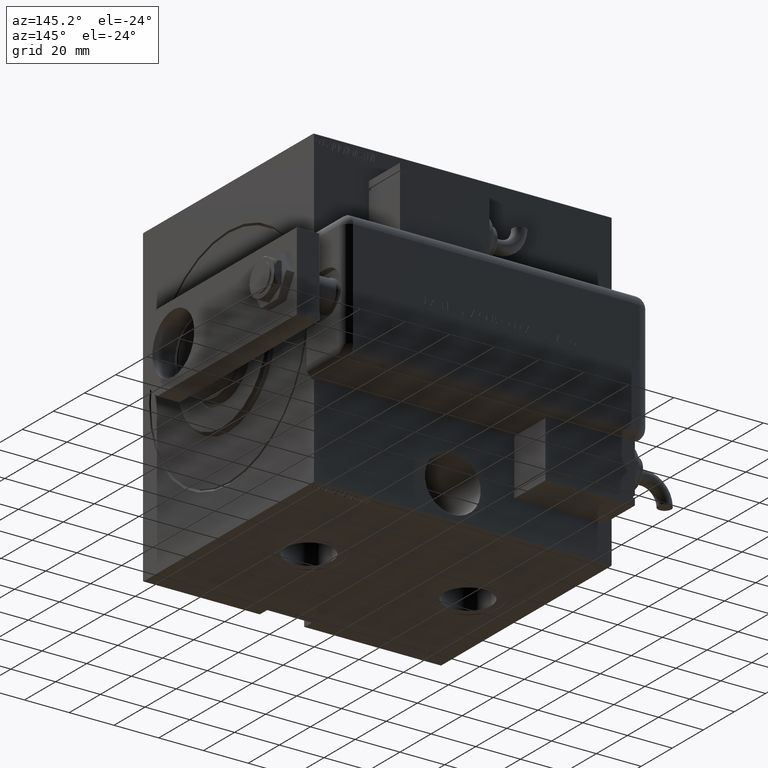
[diagram: clean part render]
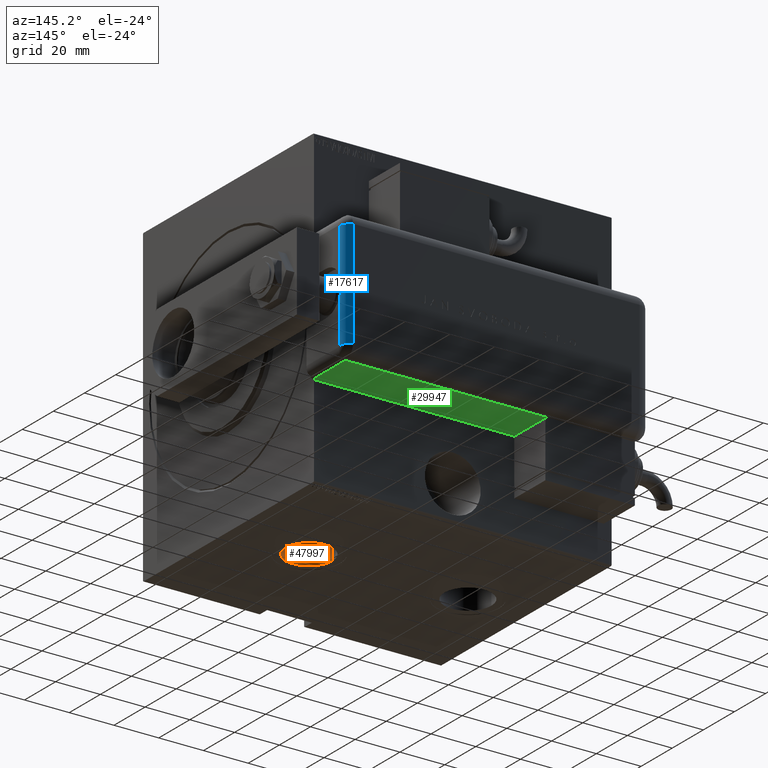
[diagram: same view with three faces highlighted in distinct colors, each labeled with its STEP entity id]
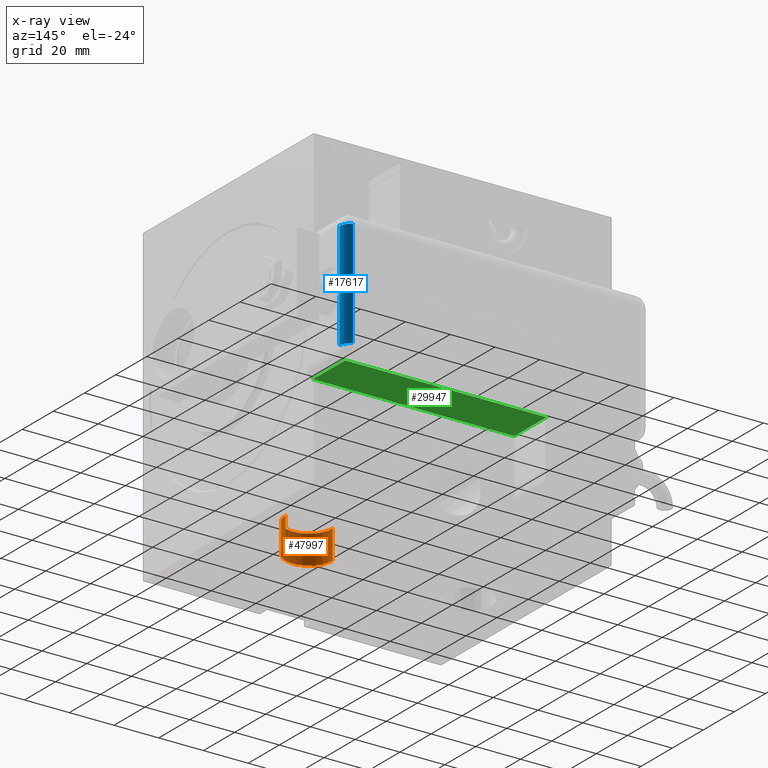
[diagram: x-ray of the same camera — body ghosted, the three highlighted faces saturated]
A machine part, auxiliary view with three faces highlighted in distinct colors.
The next image is the same camera in x-ray (body ghosted, the three faces saturated) — at least one of them is partly hidden behind the body in this view.
Their STEP definitions:

[orange] entity #47997 — the highlighted cylindrical surface (edge-blend (fillet) strip) has radius 10.48 mm, axis along (-0, 0, -1).
#3335 = LINE ( 'NONE', #8072, #40137 ) ;
#5114 = DIRECTION ( 'NONE',  ( -0.000000000000000000, -0.000000000000000000, -1.000000000000000000 ) ) ;
#7113 = VECTOR ( 'NONE', #53926, 1000.000000000000000 ) ;
#8072 = CARTESIAN_POINT ( 'NONE',  ( 25.51999999999999602, -9.665880115316144659E-15, -57.00000000000001421 ) ) ;
#8816 = DIRECTION ( 'NONE',  ( -1.000000000000000000, 0.000000000000000000, 0.000000000000000000 ) ) ;
#9597 = AXIS2_PLACEMENT_3D ( 'NONE', #17258, #35340, #53411 ) ;
#11485 = EDGE_CURVE ( 'NONE', #35185, #12454, #19244, .T. ) ;
#12454 = VERTEX_POINT ( 'NONE', #44870 ) ;
#12600 = EDGE_CURVE ( 'NONE', #48841, #33651, #3335, .T. ) ;
#13961 = ORIENTED_EDGE ( 'NONE', *, *, #11485, .F. ) ;
#13979 = AXIS2_PLACEMENT_3D ( 'NONE', #23318, #49395, #8816 ) ;
#17258 = CARTESIAN_POINT ( 'NONE',  ( 36.00000000000000000, -9.665880115316144659E-15, -57.00000000000001421 ) ) ;
#17347 = CARTESIAN_POINT ( 'NONE',  ( 46.47999999999999687, -8.382450269809717592E-15, -57.00000000000001421 ) ) ;
#19244 = LINE ( 'NONE', #27220, #7113 ) ;
#23318 = CARTESIAN_POINT ( 'NONE',  ( 36.00000000000000000, -9.665880115316144659E-15, -69.90000000000001990 ) ) ;
#24145 = CARTESIAN_POINT ( 'NONE',  ( 25.51999999999999602, -9.665880115316144659E-15, -69.90000000000001990 ) ) ;
#24724 = CIRCLE ( 'NONE', #9597, 10.48000000000000043 ) ;
#27220 = CARTESIAN_POINT ( 'NONE',  ( 46.47999999999999687, -8.382450269809717592E-15, -57.00000000000001421 ) ) ;
#30295 = EDGE_LOOP ( 'NONE', ( #13961, #57404, #58596, #56832 ) ) ;
#30371 = EDGE_CURVE ( 'NONE', #33651, #12454, #49925, .T. ) ;
#32373 = CARTESIAN_POINT ( 'NONE',  ( 25.51999999999999602, -9.665880115316144659E-15, -57.00000000000001421 ) ) ;
#33651 = VERTEX_POINT ( 'NONE', #24145 ) ;
#35185 = VERTEX_POINT ( 'NONE', #17347 ) ;
#35340 = DIRECTION ( 'NONE',  ( 0.000000000000000000, 0.000000000000000000, -1.000000000000000000 ) ) ;
#40137 = VECTOR ( 'NONE', #58145, 1000.000000000000000 ) ;
#43559 = AXIS2_PLACEMENT_3D ( 'NONE', #45706, #5114, #50736 ) ;
#44870 = CARTESIAN_POINT ( 'NONE',  ( 46.47999999999999687, -8.382450269809717592E-15, -69.90000000000001990 ) ) ;
#45706 = CARTESIAN_POINT ( 'NONE',  ( 36.00000000000000000, -9.665880115316144659E-15, -57.00000000000001421 ) ) ;
#47997 = ADVANCED_FACE ( 'NONE', ( #50137 ), #50433, .F. ) ;
#48841 = VERTEX_POINT ( 'NONE', #32373 ) ;
#49395 = DIRECTION ( 'NONE',  ( 0.000000000000000000, 0.000000000000000000, -1.000000000000000000 ) ) ;
#49925 = CIRCLE ( 'NONE', #13979, 10.48000000000000043 ) ;
#50137 = FACE_OUTER_BOUND ( 'NONE', #30295, .T. ) ;
#50433 = CYLINDRICAL_SURFACE ( 'NONE', #43559, 10.48000000000000043 ) ;
#50736 = DIRECTION ( 'NONE',  ( -1.000000000000000000, 0.000000000000000000, 0.000000000000000000 ) ) ;
#53411 = DIRECTION ( 'NONE',  ( -1.000000000000000000, 0.000000000000000000, 0.000000000000000000 ) ) ;
#53801 = EDGE_CURVE ( 'NONE', #48841, #35185, #24724, .T. ) ;
#53926 = DIRECTION ( 'NONE',  ( -0.000000000000000000, -0.000000000000000000, -1.000000000000000000 ) ) ;
#56832 = ORIENTED_EDGE ( 'NONE', *, *, #30371, .T. ) ;
#57404 = ORIENTED_EDGE ( 'NONE', *, *, #53801, .F. ) ;
#58145 = DIRECTION ( 'NONE',  ( -0.000000000000000000, -0.000000000000000000, -1.000000000000000000 ) ) ;
#58596 = ORIENTED_EDGE ( 'NONE', *, *, #12600, .T. ) ;

[blue] entity #17617 — the highlighted cylindrical surface (edge-blend (fillet) strip) has radius 5 mm, axis along (-0, -0, 1).
#221 = CARTESIAN_POINT ( 'NONE',  ( 23.99999999999999289, 21.21742430504414401, 131.0000000000000000 ) ) ;
#426 = VERTEX_POINT ( 'NONE', #39996 ) ;
#806 = DIRECTION ( 'NONE',  ( 1.000000000000000000, 0.000000000000000000, -0.000000000000000000 ) ) ;
#1209 = CARTESIAN_POINT ( 'NONE',  ( 3.358724364638089543, 21.95764543947606384, 135.9498052832645953 ) ) ;
#1501 = CARTESIAN_POINT ( 'NONE',  ( 2.120548922004968251, 22.28188573776164105, 135.8866191559994263 ) ) ;
#1787 = CARTESIAN_POINT ( 'NONE',  ( -1.704474330344697863, 22.36301991028238589, 135.8673205824228205 ) ) ;
#2083 = CARTESIAN_POINT ( 'NONE',  ( -2.126976179448857973, 22.28041711506194744, 135.8869335919388561 ) ) ;
#4102 = CARTESIAN_POINT ( 'NONE',  ( -23.99999999999999645, 21.21742430504414045, 136.0000000000000000 ) ) ;
#5131 = FACE_OUTER_BOUND ( 'NONE', #36713, .T. ) ;
#5255 = EDGE_CURVE ( 'NONE', #7351, #43507, #35426, .T. ) ;
#5453 = CIRCLE ( 'NONE', #41390, 5.000000000000004441 ) ;
#7344 = ORIENTED_EDGE ( 'NONE', *, *, #57598, .F. ) ;
#7351 = VERTEX_POINT ( 'NONE', #47169 ) ;
#8992 = CARTESIAN_POINT ( 'NONE',  ( 23.99999999999999289, 21.21742430504414045, 131.0000000000000000 ) ) ;
#10684 = CARTESIAN_POINT ( 'NONE',  ( -4.147182090953423383, 21.64034658395929966, 135.9999999999999716 ) ) ;
#11411 = VECTOR ( 'NONE', #56078, 1000.000000000000000 ) ;
#15115 = CARTESIAN_POINT ( 'NONE',  ( -0.4272404019587389690, 22.49990410585946776, 135.8327265151484653 ) ) ;
#15174 = CARTESIAN_POINT ( 'NONE',  ( -23.99999999999999289, 21.21742430504414045, 136.0000000000000000 ) ) ;
#16586 = CARTESIAN_POINT ( 'NONE',  ( -4.899643580265686360, 21.21742430504414045, 136.0000000000000000 ) ) ;
#17617 = ADVANCED_FACE ( 'NONE', ( #5131 ), #58477, .T. ) ;
#17751 = CARTESIAN_POINT ( 'NONE',  ( 23.99999999999999289, 25.79999999999998295, 133.0000000000000000 ) ) ;
#18591 = DIRECTION ( 'NONE',  ( 0.000000000000000000, 0.000000000000000000, -1.000000000000000000 ) ) ;
#19583 = CARTESIAN_POINT ( 'NONE',  ( 1.695524554190643185, 22.36448231999430902, 135.8669697265219440 ) ) ;
#20880 = EDGE_CURVE ( 'NONE', #47473, #27872, #26232, .T. ) ;
#21310 = CARTESIAN_POINT ( 'NONE',  ( 23.99999999999999289, 21.21742430504414045, 136.0000000000000000 ) ) ;
#21364 = VERTEX_POINT ( 'NONE', #21310 ) ;
#21407 = AXIS2_PLACEMENT_3D ( 'NONE', #8992, #54905, #23199 ) ;
#23199 = DIRECTION ( 'NONE',  ( 0.000000000000000000, 0.000000000000000000, 1.000000000000000000 ) ) ;
#23351 = EDGE_CURVE ( 'NONE', #426, #47473, #40269, .T. ) ;
#25230 = CARTESIAN_POINT ( 'NONE',  ( -23.99999999999999289, 21.21742430504414045, 136.0000000000000000 ) ) ;
#25280 = CARTESIAN_POINT ( 'NONE',  ( -23.99999999999999645, 25.79999999999998295, 133.0000000000000000 ) ) ;
#25684 = ORIENTED_EDGE ( 'NONE', *, *, #23351, .T. ) ;
#26232 = CIRCLE ( 'NONE', #39506, 5.000000000000004441 ) ;
#27872 = VERTEX_POINT ( 'NONE', #4102 ) ;
#28235 = VECTOR ( 'NONE', #49436, 1000.000000000000000 ) ;
#29382 = LINE ( 'NONE', #25230, #11411 ) ;
#30388 = EDGE_CURVE ( 'NONE', #426, #21364, #5453, .T. ) ;
#31675 = ORIENTED_EDGE ( 'NONE', *, *, #36554, .F. ) ;
#33089 = DIRECTION ( 'NONE',  ( 1.000000000000000000, 0.000000000000000000, 0.000000000000000000 ) ) ;
#33191 = CARTESIAN_POINT ( 'NONE',  ( -0.8526831356307389420, 22.47282938210785375, 135.8401608480814673 ) ) ;
#33251 = DIRECTION ( 'NONE',  ( -1.000000000000000000, 0.000000000000000000, -0.000000000000000000 ) ) ;
#35426 = B_SPLINE_CURVE_WITH_KNOTS ( 'NONE', 3,
 ( #46833, #42670, #1209, #1501, #19583, #37651, #55724, #15115, #33191, #1787, #2083, #51272, #10684, #42387 ),
 .UNSPECIFIED., .F., .F.,
 ( 4, 2, 2, 2, 2, 2, 4 ),
 ( 0.000000000000000000, 0.002552242785223138386, 0.003828364177834708230, 0.005104485570446278507, 0.006380606963057846616, 0.007656728355669416460, 0.01020897114089255875 ),
 .UNSPECIFIED. ) ;
#36554 = EDGE_CURVE ( 'NONE', #43507, #27872, #29382, .T. ) ;
#36713 = EDGE_LOOP ( 'NONE', ( #51525, #7344, #41691, #25684, #55921, #31675 ) ) ;
#37651 = CARTESIAN_POINT ( 'NONE',  ( 0.8473105964929712464, 22.47320809119042195, 135.8400561454382114 ) ) ;
#37710 = LINE ( 'NONE', #15174, #53252 ) ;
#39506 = AXIS2_PLACEMENT_3D ( 'NONE', #55625, #33089, #51168 ) ;
#39996 = CARTESIAN_POINT ( 'NONE',  ( 23.99999999999999289, 25.79999999999998295, 133.0000000000000000 ) ) ;
#40269 = LINE ( 'NONE', #17751, #28235 ) ;
#41390 = AXIS2_PLACEMENT_3D ( 'NONE', #221, #806, #18591 ) ;
#41691 = ORIENTED_EDGE ( 'NONE', *, *, #30388, .F. ) ;
#42387 = CARTESIAN_POINT ( 'NONE',  ( -4.899643580265686360, 21.21742430504414045, 136.0000000000000000 ) ) ;
#42670 = CARTESIAN_POINT ( 'NONE',  ( 4.147246859832670829, 21.64031018049893262, 136.0000000000000000 ) ) ;
#43507 = VERTEX_POINT ( 'NONE', #16586 ) ;
#46833 = CARTESIAN_POINT ( 'NONE',  ( 4.899643580265684584, 21.21742430504414045, 136.0000000000000000 ) ) ;
#47169 = CARTESIAN_POINT ( 'NONE',  ( 4.899643580265684584, 21.21742430504414045, 136.0000000000000000 ) ) ;
#47473 = VERTEX_POINT ( 'NONE', #25280 ) ;
#49436 = DIRECTION ( 'NONE',  ( -1.000000000000000000, 0.000000000000000000, 0.000000000000000000 ) ) ;
#51168 = DIRECTION ( 'NONE',  ( 0.000000000000000000, 0.000000000000000000, -1.000000000000000000 ) ) ;
#51272 = CARTESIAN_POINT ( 'NONE',  ( -3.360120651465719810, 21.95684709623621700, 135.9499038900309529 ) ) ;
#51525 = ORIENTED_EDGE ( 'NONE', *, *, #5255, .F. ) ;
#53252 = VECTOR ( 'NONE', #33251, 1000.000000000000000 ) ;
#54905 = DIRECTION ( 'NONE',  ( -1.000000000000000000, 0.000000000000000000, 0.000000000000000000 ) ) ;
#55625 = CARTESIAN_POINT ( 'NONE',  ( -23.99999999999999645, 21.21742430504414401, 131.0000000000000000 ) ) ;
#55724 = CARTESIAN_POINT ( 'NONE',  ( 0.4227564763960075522, 22.50009467200080948, 135.8326759398339050 ) ) ;
#55921 = ORIENTED_EDGE ( 'NONE', *, *, #20880, .T. ) ;
#56078 = DIRECTION ( 'NONE',  ( -1.000000000000000000, 0.000000000000000000, -0.000000000000000000 ) ) ;
#57598 = EDGE_CURVE ( 'NONE', #21364, #7351, #37710, .T. ) ;
#58477 = CYLINDRICAL_SURFACE ( 'NONE', #21407, 5.000000000000004441 ) ;

[green] entity #29947 — the highlighted planar face has unit normal (-0, -0, 1).
#289 = CARTESIAN_POINT ( 'NONE',  ( 28.99999999999999645, -9.421223957302265857E-15, 133.0000000000000000 ) ) ;
#589 = DIRECTION ( 'NONE',  ( -1.000000000000000000, 0.000000000000000000, 0.000000000000000000 ) ) ;
#1384 = VECTOR ( 'NONE', #3833, 1000.000000000000000 ) ;
#2905 = EDGE_CURVE ( 'NONE', #51854, #33499, #43705, .T. ) ;
#3605 = CARTESIAN_POINT ( 'NONE',  ( 28.99999999999999645, 20.79999999999998295, 133.0000000000000000 ) ) ;
#3833 = DIRECTION ( 'NONE',  ( -0.000000000000000000, -0.000000000000000000, 1.000000000000000000 ) ) ;
#4009 = LINE ( 'NONE', #12898, #8535 ) ;
#4121 = LINE ( 'NONE', #45286, #1384 ) ;
#7431 = CARTESIAN_POINT ( 'NONE',  ( 28.99999999999999645, 20.79999999999998295, 43.00000000000000000 ) ) ;
#8146 = CARTESIAN_POINT ( 'NONE',  ( 28.99999999999999645, 0.000000000000000000, 43.00000000000000000 ) ) ;
#8535 = VECTOR ( 'NONE', #43719, 1000.000000000000000 ) ;
#9539 = VECTOR ( 'NONE', #34807, 1000.000000000000000 ) ;
#12898 = CARTESIAN_POINT ( 'NONE',  ( 28.99999999999999645, 25.79999999999998295, 133.0000000000000000 ) ) ;
#14098 = CARTESIAN_POINT ( 'NONE',  ( 28.99999999999999645, -9.421223957302265857E-15, 133.0000000000000000 ) ) ;
#15679 = ORIENTED_EDGE ( 'NONE', *, *, #47261, .F. ) ;
#17842 = VECTOR ( 'NONE', #18555, 1000.000000000000000 ) ;
#18555 = DIRECTION ( 'NONE',  ( -0.000000000000000000, -0.000000000000000000, -1.000000000000000000 ) ) ;
#18839 = ORIENTED_EDGE ( 'NONE', *, *, #23569, .T. ) ;
#23569 = EDGE_CURVE ( 'NONE', #34004, #33499, #38035, .T. ) ;
#27531 = CARTESIAN_POINT ( 'NONE',  ( 28.99999999999999645, 25.79999999999998295, 133.0000000000000000 ) ) ;
#29947 = ADVANCED_FACE ( 'NONE', ( #50057 ), #40300, .F. ) ;
#30417 = CARTESIAN_POINT ( 'NONE',  ( 28.99999999999999645, 0.000000000000000000, 43.00000000000000000 ) ) ;
#33499 = VERTEX_POINT ( 'NONE', #30417 ) ;
#34004 = VERTEX_POINT ( 'NONE', #289 ) ;
#34807 = DIRECTION ( 'NONE',  ( -0.000000000000000000, -1.000000000000000000, -0.000000000000000000 ) ) ;
#38035 = LINE ( 'NONE', #14098, #17842 ) ;
#38835 = EDGE_CURVE ( 'NONE', #51854, #42183, #4121, .T. ) ;
#40300 = PLANE ( 'NONE',  #52780 ) ;
#42183 = VERTEX_POINT ( 'NONE', #3605 ) ;
#43705 = LINE ( 'NONE', #8146, #9539 ) ;
#43719 = DIRECTION ( 'NONE',  ( -0.000000000000000000, 1.000000000000000000, -0.000000000000000000 ) ) ;
#45286 = CARTESIAN_POINT ( 'NONE',  ( 28.99999999999999645, 20.79999999999998295, 133.0000000000000000 ) ) ;
#47261 = EDGE_CURVE ( 'NONE', #34004, #42183, #4009, .T. ) ;
#48381 = ORIENTED_EDGE ( 'NONE', *, *, #38835, .T. ) ;
#50057 = FACE_OUTER_BOUND ( 'NONE', #55303, .T. ) ;
#50355 = DIRECTION ( 'NONE',  ( 0.000000000000000000, 0.000000000000000000, 1.000000000000000000 ) ) ;
#51854 = VERTEX_POINT ( 'NONE', #7431 ) ;
#52780 = AXIS2_PLACEMENT_3D ( 'NONE', #27531, #589, #50355 ) ;
#55303 = EDGE_LOOP ( 'NONE', ( #18839, #55361, #48381, #15679 ) ) ;
#55361 = ORIENTED_EDGE ( 'NONE', *, *, #2905, .F. ) ;